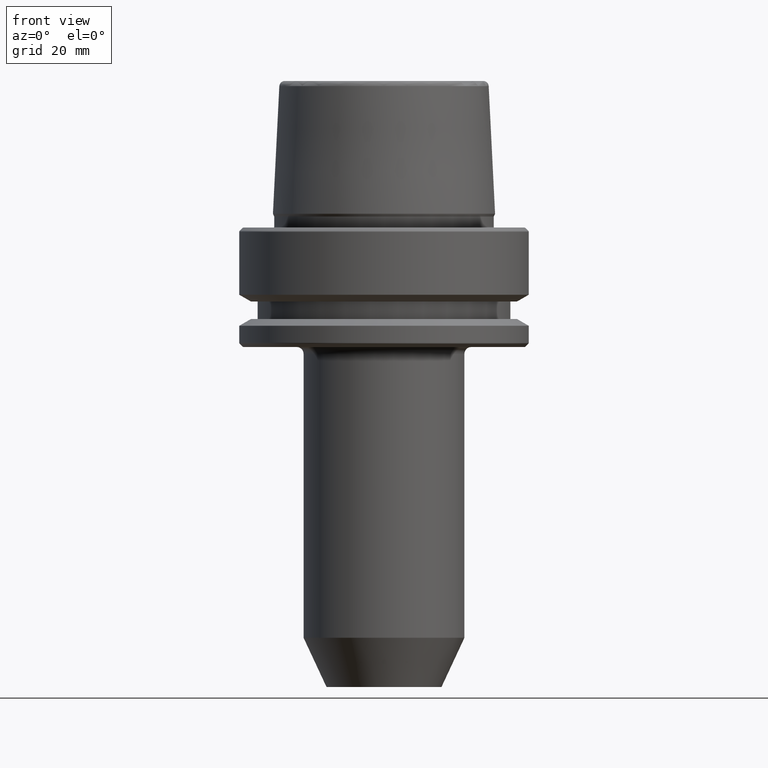
[diagram: clean part render]
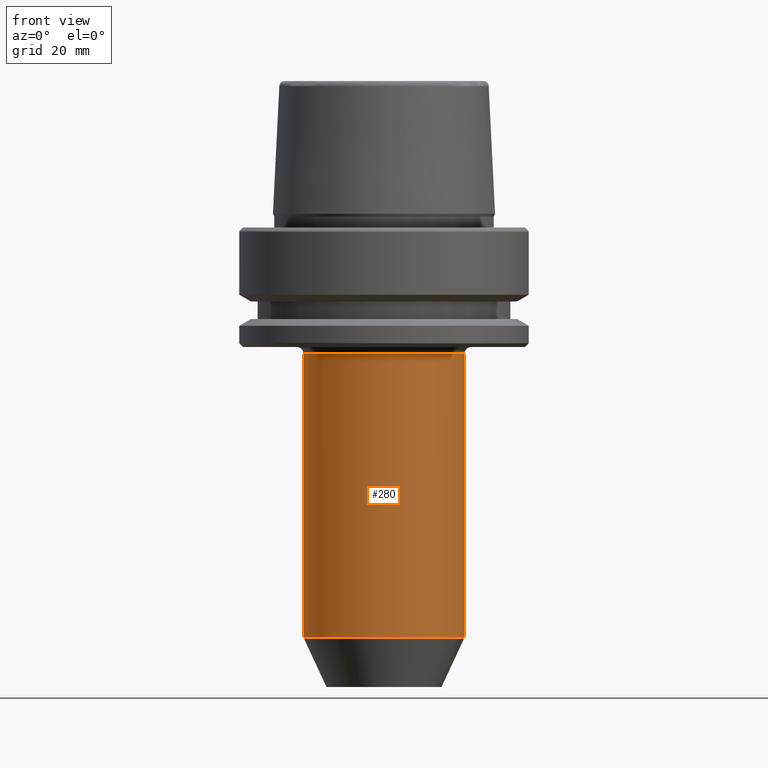
[diagram: same view with one face highlighted and labeled with its STEP entity id]
A machine part, front view. The second image highlights one B-rep face of the part: STEP entity #280.
In plain terms, the highlighted cylindrical surface (partial cylindrical patch) has radius 17.5 mm, axis along (-0, -0, 1).
Its self-contained STEP definition (entity closure, byte-faithful):
#15 = EDGE_CURVE ( 'NONE', #1151, #1018, #70, .T. ) ;
#66 = CARTESIAN_POINT ( 'NONE',  ( -17.50000000000000000, 2.143131898507868200E-015, -89.27746539745216100 ) ) ;
#70 = CIRCLE ( 'NONE', #563, 17.50000000000000000 ) ;
#85 = DIRECTION ( 'NONE',  ( 1.000000000000000000, 0.0000000000000000000, 0.0000000000000000000 ) ) ;
#139 = VECTOR ( 'NONE', #1083, 1000.000000000000000 ) ;
#140 = EDGE_CURVE ( 'NONE', #961, #841, #660, .T. ) ;
#168 = CARTESIAN_POINT ( 'NONE',  ( 0.0000000000000000000, 0.0000000000000000000, -89.27746539745216100 ) ) ;
#173 = EDGE_LOOP ( 'NONE', ( #1194, #463, #322, #243 ) ) ;
#243 = ORIENTED_EDGE ( 'NONE', *, *, #140, .T. ) ;
#257 = CYLINDRICAL_SURFACE ( 'NONE', #854, 17.50000000000000000 ) ;
#280 = ADVANCED_FACE ( 'NONE', ( #1032 ), #257, .T. ) ;
#322 = ORIENTED_EDGE ( 'NONE', *, *, #491, .T. ) ;
#331 = DIRECTION ( 'NONE',  ( -0.0000000000000000000, -0.0000000000000000000, 1.000000000000000000 ) ) ;
#463 = ORIENTED_EDGE ( 'NONE', *, *, #15, .T. ) ;
#480 = DIRECTION ( 'NONE',  ( -0.0000000000000000000, -0.0000000000000000000, 1.000000000000000000 ) ) ;
#491 = EDGE_CURVE ( 'NONE', #1018, #961, #496, .T. ) ;
#495 = CARTESIAN_POINT ( 'NONE',  ( 17.50000000000000000, 0.0000000000000000000, 31.31059451800105700 ) ) ;
#496 = LINE ( 'NONE', #495, #717 ) ;
#510 = CARTESIAN_POINT ( 'NONE',  ( 0.0000000000000000000, 0.0000000000000000000, -27.50000000000001100 ) ) ;
#563 = AXIS2_PLACEMENT_3D ( 'NONE', #168, #900, #886 ) ;
#660 = CIRCLE ( 'NONE', #665, 17.50000000000000000 ) ;
#665 = AXIS2_PLACEMENT_3D ( 'NONE', #510, #1202, #670 ) ;
#670 = DIRECTION ( 'NONE',  ( 1.000000000000000000, 0.0000000000000000000, 0.0000000000000000000 ) ) ;
#680 = CARTESIAN_POINT ( 'NONE',  ( -17.50000000000000000, 2.143131898507868200E-015, 31.31059451800105700 ) ) ;
#717 = VECTOR ( 'NONE', #480, 1000.000000000000000 ) ;
#833 = CARTESIAN_POINT ( 'NONE',  ( 17.50000000000000000, 0.0000000000000000000, -89.27746539745216100 ) ) ;
#841 = VERTEX_POINT ( 'NONE', #1061 ) ;
#854 = AXIS2_PLACEMENT_3D ( 'NONE', #1210, #331, #85 ) ;
#886 = DIRECTION ( 'NONE',  ( 1.000000000000000000, 0.0000000000000000000, 0.0000000000000000000 ) ) ;
#900 = DIRECTION ( 'NONE',  ( -0.0000000000000000000, -0.0000000000000000000, 1.000000000000000000 ) ) ;
#940 = LINE ( 'NONE', #680, #139 ) ;
#961 = VERTEX_POINT ( 'NONE', #1051 ) ;
#1018 = VERTEX_POINT ( 'NONE', #833 ) ;
#1032 = FACE_OUTER_BOUND ( 'NONE', #173, .T. ) ;
#1043 = EDGE_CURVE ( 'NONE', #1151, #841, #940, .T. ) ;
#1051 = CARTESIAN_POINT ( 'NONE',  ( 17.50000000000000000, 0.0000000000000000000, -27.50000000000001100 ) ) ;
#1061 = CARTESIAN_POINT ( 'NONE',  ( -17.50000000000000000, 2.143131898507868200E-015, -27.50000000000001100 ) ) ;
#1083 = DIRECTION ( 'NONE',  ( -0.0000000000000000000, -0.0000000000000000000, 1.000000000000000000 ) ) ;
#1151 = VERTEX_POINT ( 'NONE', #66 ) ;
#1194 = ORIENTED_EDGE ( 'NONE', *, *, #1043, .F. ) ;
#1202 = DIRECTION ( 'NONE',  ( 0.0000000000000000000, 0.0000000000000000000, -1.000000000000000000 ) ) ;
#1210 = CARTESIAN_POINT ( 'NONE',  ( 0.0000000000000000000, 0.0000000000000000000, 31.31059451800105700 ) ) ;